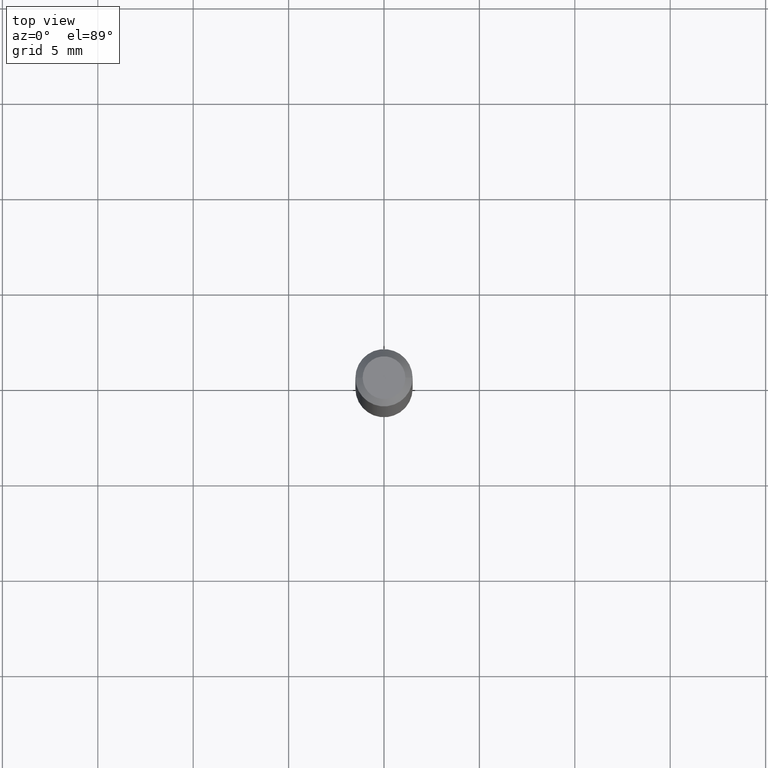
[diagram: clean part render]
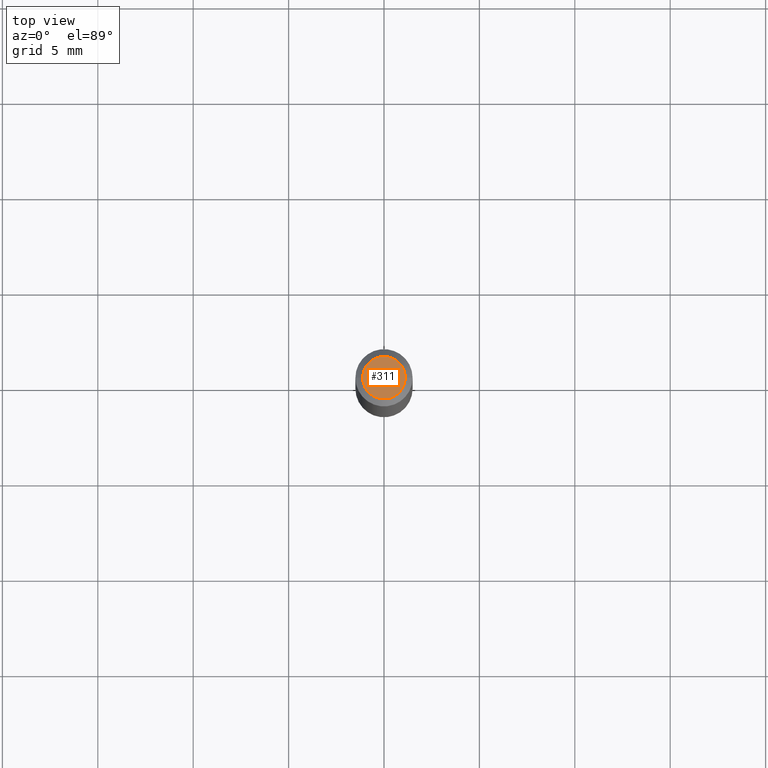
[diagram: same view with one face highlighted and labeled with its STEP entity id]
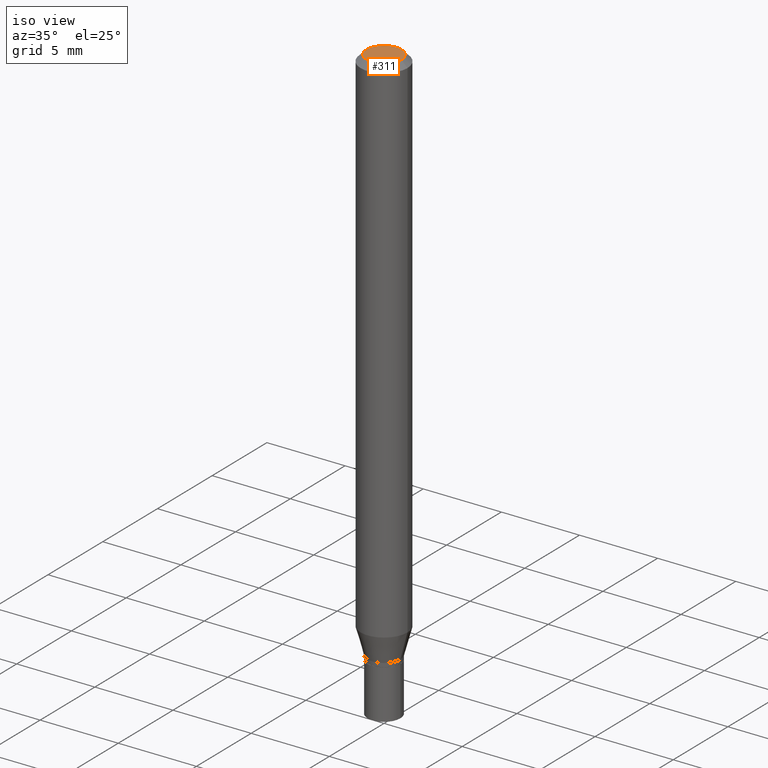
[diagram: same view with one face highlighted and labeled with its STEP entity id]
A machine part, top view. The second image highlights one B-rep face of the part: STEP entity #311.
A second angle (iso view) of the same face is appended — the face is thin or edge-on in the first view.
In plain terms, the highlighted planar face has unit normal (0, -0, -1).
Its self-contained STEP definition (entity closure, byte-faithful):
#32 = CARTESIAN_POINT ( 'NONE',  ( -0.04404999999999999888, 3.337856159934030687E-16, -2.090942999999208688E-16 ) ) ;
#44 = EDGE_CURVE ( 'NONE', #333, #147, #98, .T. ) ;
#50 = CARTESIAN_POINT ( 'NONE',  ( 5.113335882009178277E-45, -7.300488465081862281E-31, -2.090942999999186255E-16 ) ) ;
#76 = CARTESIAN_POINT ( 'NONE',  ( 3.075995059520799729E-16, 0.04404999999999999888, -2.583469029759998662E-16 ) ) ;
#98 = CIRCLE ( 'NONE', #363, 0.04404999999999999888 ) ;
#102 = DIRECTION ( 'NONE',  ( 2.438088387897960049E-29, -3.491481338843145188E-15, -1.000000000000000000 ) ) ;
#104 = CARTESIAN_POINT ( 'NONE',  ( 0.04404999999999999888, -3.798447818264464023E-16, -2.090942999999162343E-16 ) ) ;
#147 = VERTEX_POINT ( 'NONE', #104 ) ;
#153 = CARTESIAN_POINT ( 'NONE',  ( 5.113335882009178277E-45, -7.300488465081862281E-31, -2.090942999999186255E-16 ) ) ;
#172 = FACE_OUTER_BOUND ( 'NONE', #398, .T. ) ;
#177 = PLANE ( 'NONE',  #227 ) ;
#187 = AXIS2_PLACEMENT_3D ( 'NONE', #50, #335, #291 ) ;
#208 = CIRCLE ( 'NONE', #187, 0.04404999999999999888 ) ;
#217 = DIRECTION ( 'NONE',  ( -1.000000000000000000, 6.982962677686265922E-15, -4.876176775795935793E-29 ) ) ;
#227 = AXIS2_PLACEMENT_3D ( 'NONE', #76, #102, #217 ) ;
#263 = DIRECTION ( 'NONE',  ( -2.445468806185136597E-29, 3.491481338843145583E-15, 1.000000000000000000 ) ) ;
#291 = DIRECTION ( 'NONE',  ( 1.000000000000000000, -6.982962677686265922E-15, 4.888540261209747396E-29 ) ) ;
#311 = ADVANCED_FACE ( 'NONE', ( #172 ), #177, .F. ) ;
#333 = VERTEX_POINT ( 'NONE', #32 ) ;
#335 = DIRECTION ( 'NONE',  ( -2.445468806185136597E-29, 3.491481338843145583E-15, 1.000000000000000000 ) ) ;
#363 = AXIS2_PLACEMENT_3D ( 'NONE', #153, #263, #370 ) ;
#370 = DIRECTION ( 'NONE',  ( 1.000000000000000000, -6.982962677686265922E-15, 4.888540261209747396E-29 ) ) ;
#379 = EDGE_CURVE ( 'NONE', #147, #333, #208, .T. ) ;
#392 = ORIENTED_EDGE ( 'NONE', *, *, #379, .T. ) ;
#398 = EDGE_LOOP ( 'NONE', ( #447, #392 ) ) ;
#447 = ORIENTED_EDGE ( 'NONE', *, *, #44, .T. ) ;